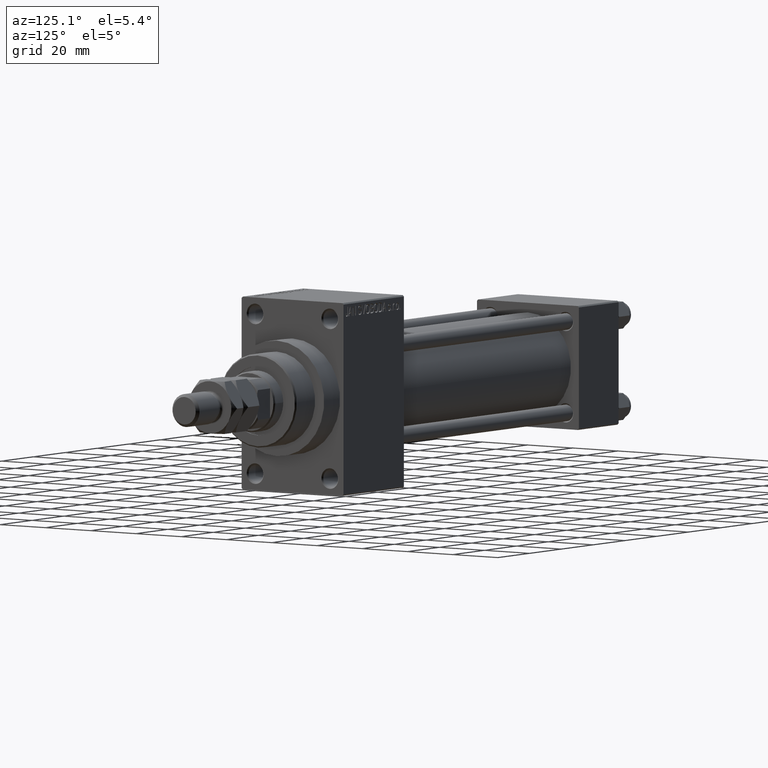
[diagram: clean part render]
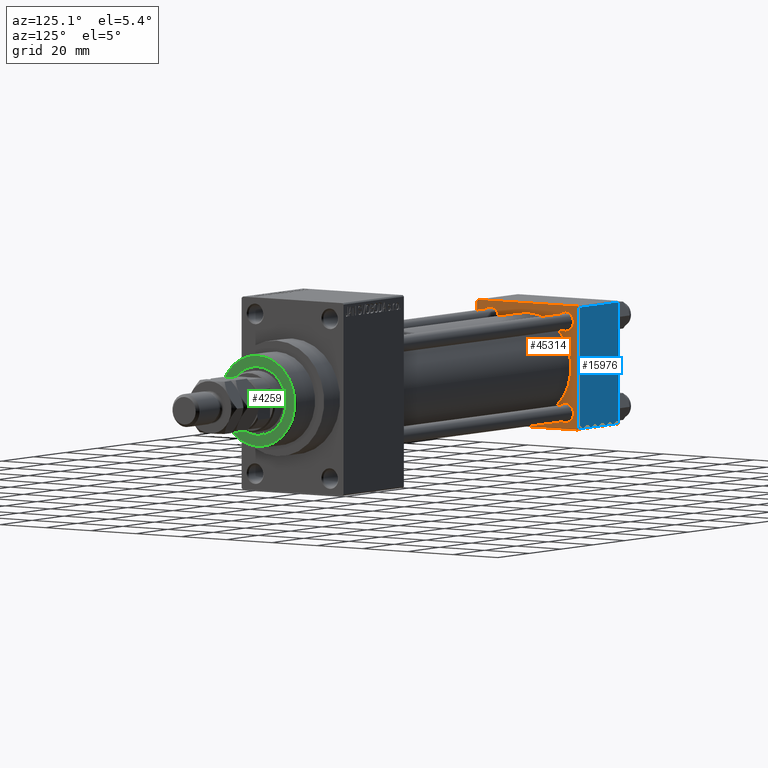
[diagram: same view with three faces highlighted in distinct colors, each labeled with its STEP entity id]
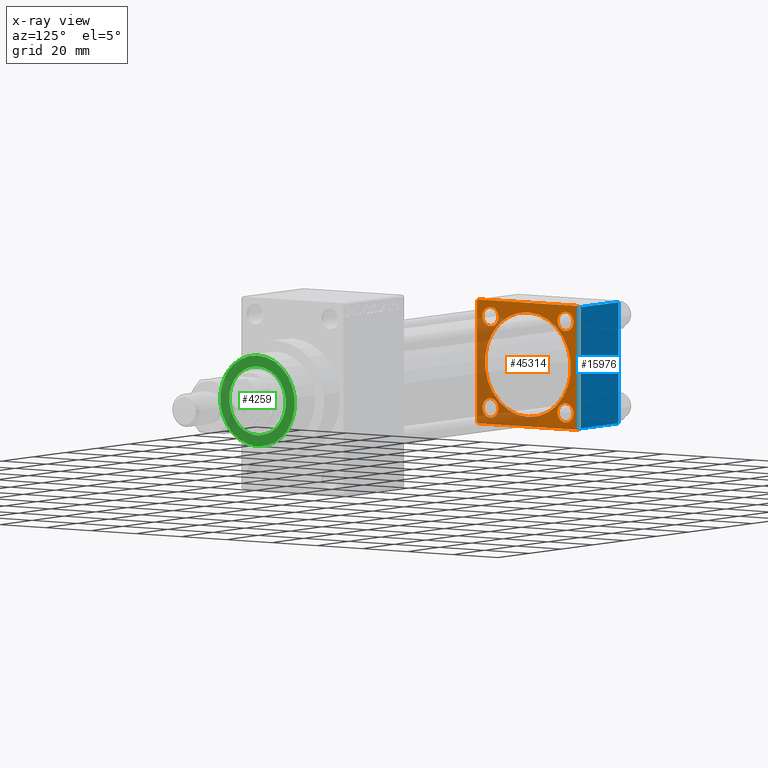
[diagram: x-ray of the same camera — body ghosted, the three highlighted faces saturated]
A machine part, auxiliary view with three faces highlighted in distinct colors.
The next image is the same camera in x-ray (body ghosted, the three faces saturated) — at least one of them is partly hidden behind the body in this view.
Their STEP definitions:

[orange] entity #45314 — the highlighted planar face has unit normal (-1, 0, 0).
#224 = DIRECTION ( 'NONE',  ( 1.000000000000000000, -0.000000000000000000, 0.000000000000000000 ) ) ;
#322 = DIRECTION ( 'NONE',  ( -0.000000000000000000, 0.7071067811865426878, 0.7071067811865524577 ) ) ;
#381 = FACE_BOUND ( 'NONE', #29149, .T. ) ;
#508 = DIRECTION ( 'NONE',  ( 0.000000000000000000, 0.000000000000000000, 1.000000000000000000 ) ) ;
#1510 = CARTESIAN_POINT ( 'NONE',  ( 25.00000000000000000, -21.99999999999998579, -22.50000000000000711 ) ) ;
#1608 = VERTEX_POINT ( 'NONE', #48478 ) ;
#1703 = CARTESIAN_POINT ( 'NONE',  ( 25.00000000000000000, -21.99999999999997868, 22.50000000000000000 ) ) ;
#2327 = VERTEX_POINT ( 'NONE', #16823 ) ;
#2544 = DIRECTION ( 'NONE',  ( 0.000000000000000000, 0.000000000000000000, -1.000000000000000000 ) ) ;
#2787 = CARTESIAN_POINT ( 'NONE',  ( 25.00000000000000000, -22.50000000000000000, -21.99999999999997158 ) ) ;
#3212 = CIRCLE ( 'NONE', #6392, 3.500000000000003109 ) ;
#3343 = CARTESIAN_POINT ( 'NONE',  ( 25.00000000000000000, 16.59999999999999787, 16.60000000000000497 ) ) ;
#3457 = VECTOR ( 'NONE', #322, 1000.000000000000000 ) ;
#3657 = ORIENTED_EDGE ( 'NONE', *, *, #5161, .T. ) ;
#3766 = EDGE_CURVE ( 'NONE', #25888, #6989, #8192, .T. ) ;
#4161 = CARTESIAN_POINT ( 'NONE',  ( 25.00000000000000000, 16.59999999999999787, -13.10000000000000142 ) ) ;
#4206 = CARTESIAN_POINT ( 'NONE',  ( 25.00000000000000000, -16.59999999999999076, 16.60000000000000853 ) ) ;
#4343 = FACE_BOUND ( 'NONE', #33555, .T. ) ;
#4592 = FACE_BOUND ( 'NONE', #31512, .T. ) ;
#5161 = EDGE_CURVE ( 'NONE', #24249, #11036, #16104, .T. ) ;
#5297 = DIRECTION ( 'NONE',  ( -1.000000000000000000, 0.000000000000000000, -0.000000000000000000 ) ) ;
#5492 = CARTESIAN_POINT ( 'NONE',  ( 25.00000000000000000, 16.59999999999999787, 13.10000000000000142 ) ) ;
#6236 = LINE ( 'NONE', #9446, #6658 ) ;
#6314 = EDGE_CURVE ( 'NONE', #22459, #43438, #14507, .T. ) ;
#6392 = AXIS2_PLACEMENT_3D ( 'NONE', #3343, #48399, #33368 ) ;
#6529 = CIRCLE ( 'NONE', #34022, 19.00000000000000000 ) ;
#6658 = VECTOR ( 'NONE', #29091, 1000.000000000000000 ) ;
#6925 = EDGE_LOOP ( 'NONE', ( #30711, #18410 ) ) ;
#6989 = VERTEX_POINT ( 'NONE', #45592 ) ;
#7164 = VERTEX_POINT ( 'NONE', #14038 ) ;
#8192 = CIRCLE ( 'NONE', #19995, 3.499999999999975131 ) ;
#8533 = CARTESIAN_POINT ( 'NONE',  ( 25.00000000000000000, -16.59999999999999076, 16.60000000000000853 ) ) ;
#9446 = CARTESIAN_POINT ( 'NONE',  ( 25.00000000000000000, 22.50000000000000000, -22.49999999999999645 ) ) ;
#9643 = EDGE_CURVE ( 'NONE', #18541, #47690, #24702, .T. ) ;
#10250 = VECTOR ( 'NONE', #22382, 1000.000000000000000 ) ;
#10875 = DIRECTION ( 'NONE',  ( 0.000000000000000000, 0.000000000000000000, 1.000000000000000000 ) ) ;
#10915 = VERTEX_POINT ( 'NONE', #2787 ) ;
#10926 = DIRECTION ( 'NONE',  ( 0.000000000000000000, -0.7071067811865474617, 0.7071067811865474617 ) ) ;
#10930 = LINE ( 'NONE', #30109, #3457 ) ;
#11036 = VERTEX_POINT ( 'NONE', #46522 ) ;
#11539 = VECTOR ( 'NONE', #10926, 1000.000000000000114 ) ;
#11594 = EDGE_CURVE ( 'NONE', #2327, #24897, #13189, .T. ) ;
#12319 = CARTESIAN_POINT ( 'NONE',  ( 25.00000000000000000, 22.50000000000000000, 21.99999999999999645 ) ) ;
#12360 = CIRCLE ( 'NONE', #20231, 3.500000000000003109 ) ;
#12529 = DIRECTION ( 'NONE',  ( 0.000000000000000000, 0.000000000000000000, 1.000000000000000000 ) ) ;
#13189 = CIRCLE ( 'NONE', #13220, 3.500000000000003109 ) ;
#13220 = AXIS2_PLACEMENT_3D ( 'NONE', #24239, #5297, #21261 ) ;
#13597 = DIRECTION ( 'NONE',  ( -1.000000000000000000, 0.000000000000000000, -0.000000000000000000 ) ) ;
#13874 = VERTEX_POINT ( 'NONE', #28904 ) ;
#14038 = CARTESIAN_POINT ( 'NONE',  ( 24.99999999999999289, -2.752562955852396712E-16, -19.00000000000000000 ) ) ;
#14078 = CARTESIAN_POINT ( 'NONE',  ( 25.00000000000000000, 16.59999999999999787, 16.60000000000000497 ) ) ;
#14507 = LINE ( 'NONE', #40837, #42920 ) ;
#14622 = CARTESIAN_POINT ( 'NONE',  ( 25.00000000000000000, 21.99999999999999289, 22.50000000000000355 ) ) ;
#14770 = LINE ( 'NONE', #18453, #10250 ) ;
#15039 = LINE ( 'NONE', #18483, #32987 ) ;
#15083 = ORIENTED_EDGE ( 'NONE', *, *, #9643, .F. ) ;
#16104 = CIRCLE ( 'NONE', #37305, 3.499999999999978684 ) ;
#16395 = FACE_BOUND ( 'NONE', #6925, .T. ) ;
#16640 = DIRECTION ( 'NONE',  ( -1.000000000000000000, 0.000000000000000000, -0.000000000000000000 ) ) ;
#16823 = CARTESIAN_POINT ( 'NONE',  ( 25.00000000000000000, 16.59999999999999787, -20.10000000000000853 ) ) ;
#17558 = DIRECTION ( 'NONE',  ( 0.000000000000000000, 0.000000000000000000, 1.000000000000000000 ) ) ;
#17777 = CARTESIAN_POINT ( 'NONE',  ( 25.00000000000000000, 16.59999999999999787, -16.60000000000000497 ) ) ;
#18410 = ORIENTED_EDGE ( 'NONE', *, *, #48059, .F. ) ;
#18453 = CARTESIAN_POINT ( 'NONE',  ( 25.00000000000000000, -22.50000000000000000, 22.50000000000000000 ) ) ;
#18483 = CARTESIAN_POINT ( 'NONE',  ( 25.00000000000000000, 22.50000000000000000, 22.50000000000000355 ) ) ;
#18541 = VERTEX_POINT ( 'NONE', #12319 ) ;
#18974 = DIRECTION ( 'NONE',  ( 1.000000000000000000, -0.000000000000000000, 0.000000000000000000 ) ) ;
#19347 = DIRECTION ( 'NONE',  ( -1.000000000000000000, 0.000000000000000000, -0.000000000000000000 ) ) ;
#19439 = EDGE_CURVE ( 'NONE', #27945, #22459, #15039, .T. ) ;
#19833 = FACE_BOUND ( 'NONE', #48154, .T. ) ;
#19995 = AXIS2_PLACEMENT_3D ( 'NONE', #22207, #47851, #17558 ) ;
#20057 = ORIENTED_EDGE ( 'NONE', *, *, #32639, .T. ) ;
#20231 = AXIS2_PLACEMENT_3D ( 'NONE', #17777, #44608, #10875 ) ;
#21015 = CARTESIAN_POINT ( 'NONE',  ( 25.00000000000000000, 22.50000000000000000, 22.50000000000000355 ) ) ;
#21261 = DIRECTION ( 'NONE',  ( 0.000000000000000000, 0.000000000000000000, 1.000000000000000000 ) ) ;
#21514 = CARTESIAN_POINT ( 'NONE',  ( 25.00000000000000000, -16.59999999999999076, 20.09999999999998721 ) ) ;
#21663 = CARTESIAN_POINT ( 'NONE',  ( 25.00000000000000000, 22.50000000000000000, -21.99999999999996803 ) ) ;
#22207 = CARTESIAN_POINT ( 'NONE',  ( 25.00000000000000000, -16.59999999999999076, -16.60000000000000853 ) ) ;
#22382 = DIRECTION ( 'NONE',  ( 0.000000000000000000, 0.000000000000000000, -1.000000000000000000 ) ) ;
#22459 = VERTEX_POINT ( 'NONE', #1703 ) ;
#23072 = EDGE_CURVE ( 'NONE', #31808, #27054, #3212, .T. ) ;
#23372 = CARTESIAN_POINT ( 'NONE',  ( 24.99999999999999289, -2.602085213965210642E-15, 0.000000000000000000 ) ) ;
#24079 = CARTESIAN_POINT ( 'NONE',  ( 25.00000000000000000, -22.50000000000000000, 22.00000000000000000 ) ) ;
#24121 = AXIS2_PLACEMENT_3D ( 'NONE', #14078, #13597, #29315 ) ;
#24148 = VECTOR ( 'NONE', #2544, 1000.000000000000000 ) ;
#24239 = CARTESIAN_POINT ( 'NONE',  ( 25.00000000000000000, 16.59999999999999787, -16.60000000000000497 ) ) ;
#24249 = VERTEX_POINT ( 'NONE', #21514 ) ;
#24375 = ORIENTED_EDGE ( 'NONE', *, *, #42593, .T. ) ;
#24702 = LINE ( 'NONE', #21015, #24148 ) ;
#24897 = VERTEX_POINT ( 'NONE', #4161 ) ;
#25144 = DIRECTION ( 'NONE',  ( 0.000000000000000000, -1.000000000000000000, -7.709882115452476934E-17 ) ) ;
#25888 = VERTEX_POINT ( 'NONE', #27651 ) ;
#25924 = DIRECTION ( 'NONE',  ( -1.000000000000000000, 0.000000000000000000, -0.000000000000000000 ) ) ;
#26606 = AXIS2_PLACEMENT_3D ( 'NONE', #38124, #35172, #12529 ) ;
#26720 = CARTESIAN_POINT ( 'NONE',  ( 24.99999999999999289, -2.602085213965210642E-15, 19.00000000000000000 ) ) ;
#26729 = CIRCLE ( 'NONE', #39304, 19.00000000000000000 ) ;
#27054 = VERTEX_POINT ( 'NONE', #46098 ) ;
#27651 = CARTESIAN_POINT ( 'NONE',  ( 25.00000000000000000, -16.59999999999999076, -20.09999999999998366 ) ) ;
#27690 = PLANE ( 'NONE',  #30469 ) ;
#27945 = VERTEX_POINT ( 'NONE', #35704 ) ;
#28161 = AXIS2_PLACEMENT_3D ( 'NONE', #8533, #16640, #38787 ) ;
#28904 = CARTESIAN_POINT ( 'NONE',  ( 25.00000000000000000, 21.99999999999999289, -22.49999999999999645 ) ) ;
#29091 = DIRECTION ( 'NONE',  ( 0.000000000000000000, -1.000000000000000000, -2.312964634635742957E-16 ) ) ;
#29149 = EDGE_LOOP ( 'NONE', ( #47991, #46132 ) ) ;
#29315 = DIRECTION ( 'NONE',  ( 0.000000000000000000, 0.000000000000000000, 1.000000000000000000 ) ) ;
#30109 = CARTESIAN_POINT ( 'NONE',  ( 25.00000000000000000, 22.50000000000000000, -21.99999999999998224 ) ) ;
#30256 = DIRECTION ( 'NONE',  ( 0.000000000000000000, 0.000000000000000000, 1.000000000000000000 ) ) ;
#30469 = AXIS2_PLACEMENT_3D ( 'NONE', #38043, #19347, #42728 ) ;
#30682 = EDGE_CURVE ( 'NONE', #41437, #7164, #6529, .T. ) ;
#30711 = ORIENTED_EDGE ( 'NONE', *, *, #30682, .F. ) ;
#31512 = EDGE_LOOP ( 'NONE', ( #32408, #3657 ) ) ;
#31808 = VERTEX_POINT ( 'NONE', #5492 ) ;
#32339 = ORIENTED_EDGE ( 'NONE', *, *, #23072, .T. ) ;
#32408 = ORIENTED_EDGE ( 'NONE', *, *, #46231, .T. ) ;
#32639 = EDGE_CURVE ( 'NONE', #13874, #47690, #10930, .T. ) ;
#32987 = VECTOR ( 'NONE', #25144, 1000.000000000000000 ) ;
#33368 = DIRECTION ( 'NONE',  ( 0.000000000000000000, 0.000000000000000000, 1.000000000000000000 ) ) ;
#33555 = EDGE_LOOP ( 'NONE', ( #32339, #40772 ) ) ;
#33670 = CIRCLE ( 'NONE', #26606, 3.499999999999975131 ) ;
#33918 = EDGE_CURVE ( 'NONE', #13874, #1608, #6236, .T. ) ;
#34022 = AXIS2_PLACEMENT_3D ( 'NONE', #37925, #18974, #508 ) ;
#34360 = ORIENTED_EDGE ( 'NONE', *, *, #19439, .T. ) ;
#34840 = FACE_OUTER_BOUND ( 'NONE', #42548, .T. ) ;
#34980 = DIRECTION ( 'NONE',  ( 0.000000000000000000, 0.7071067811865426878, -0.7071067811865524577 ) ) ;
#35172 = DIRECTION ( 'NONE',  ( -1.000000000000000000, 0.000000000000000000, -0.000000000000000000 ) ) ;
#35515 = ORIENTED_EDGE ( 'NONE', *, *, #47701, .T. ) ;
#35704 = CARTESIAN_POINT ( 'NONE',  ( 25.00000000000000000, 21.99999999999999289, 22.50000000000000355 ) ) ;
#35744 = ORIENTED_EDGE ( 'NONE', *, *, #44145, .T. ) ;
#37143 = DIRECTION ( 'NONE',  ( -0.000000000000000000, -0.7071067811865525687, -0.7071067811865425767 ) ) ;
#37239 = DIRECTION ( 'NONE',  ( 0.000000000000000000, 0.000000000000000000, 1.000000000000000000 ) ) ;
#37305 = AXIS2_PLACEMENT_3D ( 'NONE', #4206, #25924, #37239 ) ;
#37925 = CARTESIAN_POINT ( 'NONE',  ( 24.99999999999999289, -2.602085213965210642E-15, 0.000000000000000000 ) ) ;
#38043 = CARTESIAN_POINT ( 'NONE',  ( 25.00000000000000000, 0.000000000000000000, 0.000000000000000000 ) ) ;
#38124 = CARTESIAN_POINT ( 'NONE',  ( 25.00000000000000000, -16.59999999999999076, -16.60000000000000853 ) ) ;
#38787 = DIRECTION ( 'NONE',  ( 0.000000000000000000, 0.000000000000000000, 1.000000000000000000 ) ) ;
#39304 = AXIS2_PLACEMENT_3D ( 'NONE', #23372, #224, #30256 ) ;
#39439 = ORIENTED_EDGE ( 'NONE', *, *, #33918, .F. ) ;
#40772 = ORIENTED_EDGE ( 'NONE', *, *, #42928, .T. ) ;
#40837 = CARTESIAN_POINT ( 'NONE',  ( 25.00000000000000000, -22.50000000000000000, 22.00000000000000000 ) ) ;
#40888 = ORIENTED_EDGE ( 'NONE', *, *, #6314, .T. ) ;
#41437 = VERTEX_POINT ( 'NONE', #26720 ) ;
#42548 = EDGE_LOOP ( 'NONE', ( #39439, #20057, #15083, #24375, #34360, #40888, #35515, #35744 ) ) ;
#42593 = EDGE_CURVE ( 'NONE', #18541, #27945, #48114, .T. ) ;
#42728 = DIRECTION ( 'NONE',  ( -0.000000000000000000, 0.000000000000000000, 1.000000000000000000 ) ) ;
#42920 = VECTOR ( 'NONE', #37143, 999.9999999999998863 ) ;
#42928 = EDGE_CURVE ( 'NONE', #27054, #31808, #43004, .T. ) ;
#43004 = CIRCLE ( 'NONE', #24121, 3.500000000000003109 ) ;
#43116 = CIRCLE ( 'NONE', #28161, 3.499999999999978684 ) ;
#43438 = VERTEX_POINT ( 'NONE', #24079 ) ;
#43769 = ORIENTED_EDGE ( 'NONE', *, *, #47010, .T. ) ;
#43884 = EDGE_CURVE ( 'NONE', #24897, #2327, #12360, .T. ) ;
#44145 = EDGE_CURVE ( 'NONE', #10915, #1608, #46811, .T. ) ;
#44608 = DIRECTION ( 'NONE',  ( -1.000000000000000000, 0.000000000000000000, -0.000000000000000000 ) ) ;
#45314 = ADVANCED_FACE ( 'NONE', ( #19833, #381, #4592, #4343, #16395, #34840 ), #27690, .F. ) ;
#45528 = ORIENTED_EDGE ( 'NONE', *, *, #3766, .T. ) ;
#45592 = CARTESIAN_POINT ( 'NONE',  ( 25.00000000000000000, -16.59999999999999076, -13.10000000000003162 ) ) ;
#46098 = CARTESIAN_POINT ( 'NONE',  ( 25.00000000000000000, 16.59999999999999787, 20.10000000000000853 ) ) ;
#46132 = ORIENTED_EDGE ( 'NONE', *, *, #43884, .T. ) ;
#46173 = VECTOR ( 'NONE', #34980, 1000.000000000000000 ) ;
#46231 = EDGE_CURVE ( 'NONE', #11036, #24249, #43116, .T. ) ;
#46522 = CARTESIAN_POINT ( 'NONE',  ( 25.00000000000000000, -16.59999999999999076, 13.10000000000002807 ) ) ;
#46811 = LINE ( 'NONE', #1510, #46173 ) ;
#47010 = EDGE_CURVE ( 'NONE', #6989, #25888, #33670, .T. ) ;
#47690 = VERTEX_POINT ( 'NONE', #21663 ) ;
#47701 = EDGE_CURVE ( 'NONE', #43438, #10915, #14770, .T. ) ;
#47851 = DIRECTION ( 'NONE',  ( -1.000000000000000000, 0.000000000000000000, -0.000000000000000000 ) ) ;
#47991 = ORIENTED_EDGE ( 'NONE', *, *, #11594, .T. ) ;
#48059 = EDGE_CURVE ( 'NONE', #7164, #41437, #26729, .T. ) ;
#48114 = LINE ( 'NONE', #14622, #11539 ) ;
#48154 = EDGE_LOOP ( 'NONE', ( #45528, #43769 ) ) ;
#48399 = DIRECTION ( 'NONE',  ( -1.000000000000000000, 0.000000000000000000, -0.000000000000000000 ) ) ;
#48478 = CARTESIAN_POINT ( 'NONE',  ( 25.00000000000000000, -21.99999999999997158, -22.50000000000000711 ) ) ;

[blue] entity #15976 — the highlighted planar face has unit normal (0, 1, 0).
#413 = LINE ( 'NONE', #18884, #34747 ) ;
#1476 = VERTEX_POINT ( 'NONE', #17232 ) ;
#2544 = DIRECTION ( 'NONE',  ( 0.000000000000000000, 0.000000000000000000, -1.000000000000000000 ) ) ;
#7126 = ORIENTED_EDGE ( 'NONE', *, *, #40857, .T. ) ;
#8222 = CARTESIAN_POINT ( 'NONE',  ( 25.00000000000000000, 22.50000000000000000, 22.50000000000000355 ) ) ;
#8679 = VECTOR ( 'NONE', #22139, 1000.000000000000000 ) ;
#9065 = VERTEX_POINT ( 'NONE', #29824 ) ;
#9643 = EDGE_CURVE ( 'NONE', #18541, #47690, #24702, .T. ) ;
#12154 = PLANE ( 'NONE',  #19503 ) ;
#12319 = CARTESIAN_POINT ( 'NONE',  ( 25.00000000000000000, 22.50000000000000000, 21.99999999999999645 ) ) ;
#15773 = CARTESIAN_POINT ( 'NONE',  ( 25.00000000000000000, 22.50000000000000000, -21.99999999999998224 ) ) ;
#15976 = ADVANCED_FACE ( 'NONE', ( #19041 ), #12154, .T. ) ;
#17057 = ORIENTED_EDGE ( 'NONE', *, *, #27755, .F. ) ;
#17232 = CARTESIAN_POINT ( 'NONE',  ( 0.000000000000000000, 22.50000000000000000, 21.99999999999999645 ) ) ;
#18541 = VERTEX_POINT ( 'NONE', #12319 ) ;
#18884 = CARTESIAN_POINT ( 'NONE',  ( 0.000000000000000000, 22.50000000000000000, 22.50000000000000355 ) ) ;
#19041 = FACE_OUTER_BOUND ( 'NONE', #23819, .T. ) ;
#19503 = AXIS2_PLACEMENT_3D ( 'NONE', #8222, #26918, #41193 ) ;
#21015 = CARTESIAN_POINT ( 'NONE',  ( 25.00000000000000000, 22.50000000000000000, 22.50000000000000355 ) ) ;
#21663 = CARTESIAN_POINT ( 'NONE',  ( 25.00000000000000000, 22.50000000000000000, -21.99999999999996803 ) ) ;
#22139 = DIRECTION ( 'NONE',  ( 1.000000000000000000, 0.000000000000000000, 0.000000000000000000 ) ) ;
#23053 = DIRECTION ( 'NONE',  ( 0.000000000000000000, 0.000000000000000000, -1.000000000000000000 ) ) ;
#23238 = VECTOR ( 'NONE', #42109, 1000.000000000000000 ) ;
#23819 = EDGE_LOOP ( 'NONE', ( #44554, #7126, #17057, #40338 ) ) ;
#24148 = VECTOR ( 'NONE', #2544, 1000.000000000000000 ) ;
#24702 = LINE ( 'NONE', #21015, #24148 ) ;
#26918 = DIRECTION ( 'NONE',  ( -0.000000000000000000, 1.000000000000000000, 0.000000000000000000 ) ) ;
#27083 = LINE ( 'NONE', #15773, #23238 ) ;
#27755 = EDGE_CURVE ( 'NONE', #1476, #9065, #413, .T. ) ;
#29824 = CARTESIAN_POINT ( 'NONE',  ( 0.000000000000000000, 22.50000000000000000, -21.99999999999996803 ) ) ;
#34747 = VECTOR ( 'NONE', #23053, 1000.000000000000000 ) ;
#40338 = ORIENTED_EDGE ( 'NONE', *, *, #47950, .T. ) ;
#40857 = EDGE_CURVE ( 'NONE', #47690, #9065, #27083, .T. ) ;
#41193 = DIRECTION ( 'NONE',  ( 0.000000000000000000, -0.000000000000000000, 1.000000000000000000 ) ) ;
#42109 = DIRECTION ( 'NONE',  ( -1.000000000000000000, 0.000000000000000000, 0.000000000000000000 ) ) ;
#44314 = LINE ( 'NONE', #48017, #8679 ) ;
#44554 = ORIENTED_EDGE ( 'NONE', *, *, #9643, .T. ) ;
#47690 = VERTEX_POINT ( 'NONE', #21663 ) ;
#47950 = EDGE_CURVE ( 'NONE', #1476, #18541, #44314, .T. ) ;
#48017 = CARTESIAN_POINT ( 'NONE',  ( 25.00000000000000000, 22.50000000000000000, 21.99999999999999645 ) ) ;

[green] entity #4259 — the highlighted planar face has unit normal (1, -0, -0).
#742 = CARTESIAN_POINT ( 'NONE',  ( 0.000000000000000000, 0.000000000000000000, 55.26000000000000512 ) ) ;
#2104 = DIRECTION ( 'NONE',  ( 0.000000000000000000, 0.000000000000000000, 1.000000000000000000 ) ) ;
#2535 = DIRECTION ( 'NONE',  ( 0.000000000000000000, 0.000000000000000000, 1.000000000000000000 ) ) ;
#2880 = ORIENTED_EDGE ( 'NONE', *, *, #38202, .T. ) ;
#3949 = FACE_BOUND ( 'NONE', #36412, .T. ) ;
#4071 = CARTESIAN_POINT ( 'NONE',  ( 0.000000000000000000, 0.000000000000000000, 55.26000000000000512 ) ) ;
#4259 = ADVANCED_FACE ( 'NONE', ( #3949, #26093 ), #37658, .T. ) ;
#4572 = DIRECTION ( 'NONE',  ( 0.000000000000000000, 0.000000000000000000, 1.000000000000000000 ) ) ;
#6221 = AXIS2_PLACEMENT_3D ( 'NONE', #742, #15771, #30766 ) ;
#6793 = CIRCLE ( 'NONE', #18564, 16.50000000000001421 ) ;
#7391 = CARTESIAN_POINT ( 'NONE',  ( 0.000000000000000000, 0.000000000000000000, 55.26000000000000512 ) ) ;
#12082 = ORIENTED_EDGE ( 'NONE', *, *, #17970, .F. ) ;
#12186 = DIRECTION ( 'NONE',  ( 1.000000000000000000, 0.000000000000000000, 0.000000000000000000 ) ) ;
#14982 = CARTESIAN_POINT ( 'NONE',  ( 16.50000000000001421, 2.051283388571817281E-15, 55.26000000000000512 ) ) ;
#15771 = DIRECTION ( 'NONE',  ( 0.000000000000000000, 0.000000000000000000, 1.000000000000000000 ) ) ;
#17355 = EDGE_LOOP ( 'NONE', ( #2880, #28358 ) ) ;
#17970 = EDGE_CURVE ( 'NONE', #31038, #44758, #27403, .T. ) ;
#18066 = ORIENTED_EDGE ( 'NONE', *, *, #32474, .F. ) ;
#18564 = AXIS2_PLACEMENT_3D ( 'NONE', #40418, #2535, #28385 ) ;
#18638 = EDGE_CURVE ( 'NONE', #41913, #22568, #26650, .T. ) ;
#22391 = DIRECTION ( 'NONE',  ( 0.000000000000000000, 0.000000000000000000, 1.000000000000000000 ) ) ;
#22568 = VERTEX_POINT ( 'NONE', #31252 ) ;
#24505 = CARTESIAN_POINT ( 'NONE',  ( 0.000000000000000000, 0.000000000000000000, 55.26000000000000512 ) ) ;
#26093 = FACE_OUTER_BOUND ( 'NONE', #17355, .T. ) ;
#26650 = CIRCLE ( 'NONE', #6221, 16.50000000000001421 ) ;
#27403 = CIRCLE ( 'NONE', #33686, 12.50000000000000000 ) ;
#28358 = ORIENTED_EDGE ( 'NONE', *, *, #18638, .T. ) ;
#28385 = DIRECTION ( 'NONE',  ( 1.000000000000000000, 0.000000000000000000, 0.000000000000000000 ) ) ;
#28668 = DIRECTION ( 'NONE',  ( 1.000000000000000000, 0.000000000000000000, 0.000000000000000000 ) ) ;
#30766 = DIRECTION ( 'NONE',  ( 1.000000000000000000, 0.000000000000000000, 0.000000000000000000 ) ) ;
#31038 = VERTEX_POINT ( 'NONE', #35385 ) ;
#31252 = CARTESIAN_POINT ( 'NONE',  ( -16.50000000000001421, 0.000000000000000000, 55.26000000000000512 ) ) ;
#31746 = CIRCLE ( 'NONE', #39579, 12.50000000000000000 ) ;
#32474 = EDGE_CURVE ( 'NONE', #44758, #31038, #31746, .T. ) ;
#33686 = AXIS2_PLACEMENT_3D ( 'NONE', #4071, #4572, #12186 ) ;
#33969 = DIRECTION ( 'NONE',  ( 1.000000000000000000, 0.000000000000000000, -0.000000000000000000 ) ) ;
#35385 = CARTESIAN_POINT ( 'NONE',  ( 12.50000000000000000, 0.000000000000000000, 55.26000000000000512 ) ) ;
#36412 = EDGE_LOOP ( 'NONE', ( #12082, #18066 ) ) ;
#37658 = PLANE ( 'NONE',  #48318 ) ;
#38202 = EDGE_CURVE ( 'NONE', #22568, #41913, #6793, .T. ) ;
#39579 = AXIS2_PLACEMENT_3D ( 'NONE', #24505, #2104, #28668 ) ;
#40418 = CARTESIAN_POINT ( 'NONE',  ( 0.000000000000000000, 0.000000000000000000, 55.26000000000000512 ) ) ;
#41913 = VERTEX_POINT ( 'NONE', #14982 ) ;
#42009 = CARTESIAN_POINT ( 'NONE',  ( -12.50000000000000000, 1.530808498934191521E-15, 55.26000000000000512 ) ) ;
#44758 = VERTEX_POINT ( 'NONE', #42009 ) ;
#48318 = AXIS2_PLACEMENT_3D ( 'NONE', #7391, #22391, #33969 ) ;